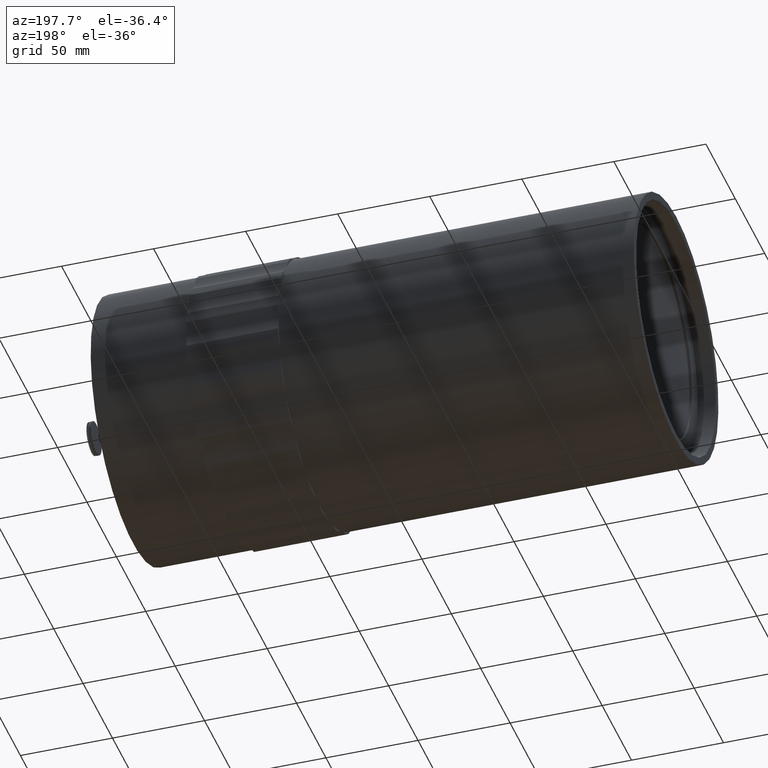
[diagram: clean part render]
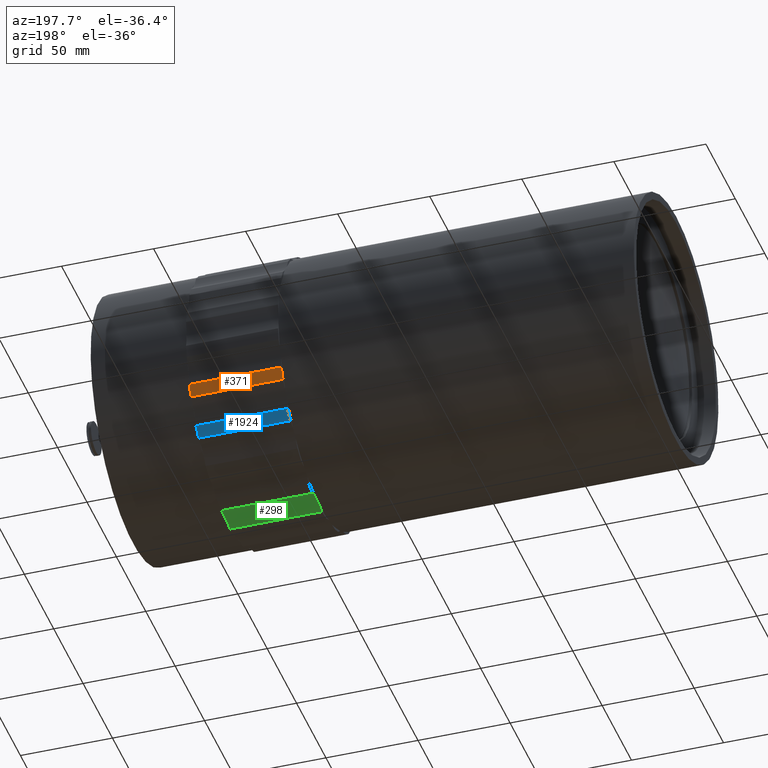
[diagram: same view with three faces highlighted in distinct colors, each labeled with its STEP entity id]
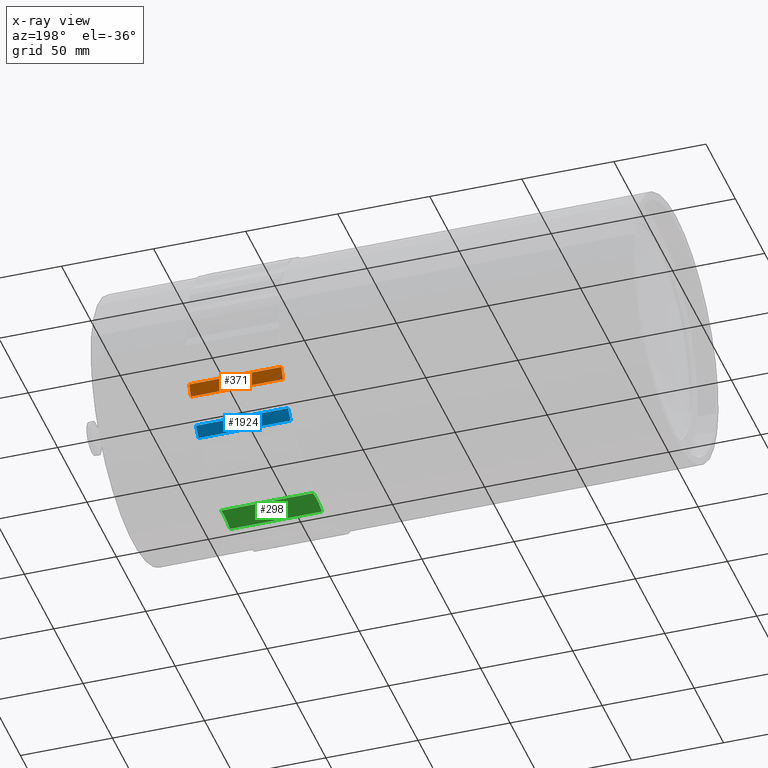
[diagram: x-ray of the same camera — body ghosted, the three highlighted faces saturated]
A machine part, auxiliary view with three faces highlighted in distinct colors.
The next image is the same camera in x-ray (body ghosted, the three faces saturated) — at least one of them is partly hidden behind the body in this view.
Their STEP definitions:

[orange] entity #371 — the highlighted cylindrical surface (partial cylindrical patch) has radius 73 mm, axis along (-1, -0, -0).
#142 = VERTEX_POINT ( 'NONE', #1271 ) ;
#159 = CARTESIAN_POINT ( 'NONE',  ( -61.14960380346137470, 0.000000000000000000, 0.000000000000000000 ) ) ;
#180 = CARTESIAN_POINT ( 'NONE',  ( 38.99999999999990763, 0.000000000000000000, 0.000000000000000000 ) ) ;
#189 = CYLINDRICAL_SURFACE ( 'NONE', #2617, 73.00000000000001421 ) ;
#288 = CARTESIAN_POINT ( 'NONE',  ( -11.00000000000009237, 0.000000000000000000, 0.000000000000000000 ) ) ;
#371 = ADVANCED_FACE ( 'NONE', ( #2129 ), #189, .T. ) ;
#469 = CARTESIAN_POINT ( 'NONE',  ( -11.00000000000009237, 64.28276904952367943, -34.59372202185826239 ) ) ;
#588 = DIRECTION ( 'NONE',  ( 0.000000000000000000, 0.000000000000000000, 1.000000000000000000 ) ) ;
#593 = CARTESIAN_POINT ( 'NONE',  ( -61.14960380346137470, 64.28276904952367943, -34.59372202185826239 ) ) ;
#704 = CARTESIAN_POINT ( 'NONE',  ( -11.00000000000009237, 67.12611191005457556, -28.68945973417468664 ) ) ;
#894 = EDGE_CURVE ( 'NONE', #1891, #962, #2159, .T. ) ;
#904 = AXIS2_PLACEMENT_3D ( 'NONE', #180, #1755, #588 ) ;
#944 = DIRECTION ( 'NONE',  ( 1.000000000000000000, 0.000000000000000000, 0.000000000000000000 ) ) ;
#962 = VERTEX_POINT ( 'NONE', #469 ) ;
#1065 = DIRECTION ( 'NONE',  ( -1.000000000000000000, -0.000000000000000000, -0.000000000000000000 ) ) ;
#1111 = DIRECTION ( 'NONE',  ( 0.000000000000000000, -9.769962616701377556E-15, 1.000000000000000000 ) ) ;
#1174 = ORIENTED_EDGE ( 'NONE', *, *, #1866, .T. ) ;
#1271 = CARTESIAN_POINT ( 'NONE',  ( 38.99999999999990763, 67.12611191005457556, -28.68945973417468664 ) ) ;
#1362 = CARTESIAN_POINT ( 'NONE',  ( 38.99999999999990763, 64.28276904952367943, -34.59372202185826239 ) ) ;
#1426 = VECTOR ( 'NONE', #2126, 1000.000000000000000 ) ;
#1582 = ORIENTED_EDGE ( 'NONE', *, *, #2830, .T. ) ;
#1755 = DIRECTION ( 'NONE',  ( -1.000000000000000000, -0.000000000000000000, -0.000000000000000000 ) ) ;
#1756 = LINE ( 'NONE', #2390, #2494 ) ;
#1826 = ORIENTED_EDGE ( 'NONE', *, *, #894, .T. ) ;
#1832 = EDGE_CURVE ( 'NONE', #1966, #142, #1756, .T. ) ;
#1866 = EDGE_CURVE ( 'NONE', #962, #1966, #2269, .T. ) ;
#1891 = VERTEX_POINT ( 'NONE', #1362 ) ;
#1893 = ORIENTED_EDGE ( 'NONE', *, *, #1832, .T. ) ;
#1906 = EDGE_LOOP ( 'NONE', ( #1174, #1893, #1582, #1826 ) ) ;
#1966 = VERTEX_POINT ( 'NONE', #704 ) ;
#2126 = DIRECTION ( 'NONE',  ( -1.000000000000000000, -0.000000000000000000, -0.000000000000000000 ) ) ;
#2129 = FACE_OUTER_BOUND ( 'NONE', #1906, .T. ) ;
#2159 = LINE ( 'NONE', #593, #1426 ) ;
#2269 = CIRCLE ( 'NONE', #2648, 73.00000000000001421 ) ;
#2390 = CARTESIAN_POINT ( 'NONE',  ( -61.14960380346137470, 67.12611191005457556, -28.68945973417467599 ) ) ;
#2494 = VECTOR ( 'NONE', #2637, 1000.000000000000000 ) ;
#2617 = AXIS2_PLACEMENT_3D ( 'NONE', #159, #1065, #2813 ) ;
#2637 = DIRECTION ( 'NONE',  ( 1.000000000000000000, 0.000000000000000000, 0.000000000000000000 ) ) ;
#2648 = AXIS2_PLACEMENT_3D ( 'NONE', #288, #944, #1111 ) ;
#2752 = CIRCLE ( 'NONE', #904, 73.00000000000001421 ) ;
#2813 = DIRECTION ( 'NONE',  ( 0.000000000000000000, 0.000000000000000000, 1.000000000000000000 ) ) ;
#2830 = EDGE_CURVE ( 'NONE', #142, #1891, #2752, .T. ) ;

[blue] entity #1924 — the highlighted cylindrical surface (partial cylindrical patch) has radius 73 mm, axis along (-1, -0, -0).
#53 = DIRECTION ( 'NONE',  ( -1.000000000000000000, -0.000000000000000000, -0.000000000000000000 ) ) ;
#88 = LINE ( 'NONE', #966, #360 ) ;
#107 = CARTESIAN_POINT ( 'NONE',  ( -11.00000000000009237, 55.68752039170402668, -47.20063635824785564 ) ) ;
#116 = EDGE_CURVE ( 'NONE', #2248, #596, #2634, .T. ) ;
#146 = AXIS2_PLACEMENT_3D ( 'NONE', #2696, #1137, #479 ) ;
#190 = ORIENTED_EDGE ( 'NONE', *, *, #277, .T. ) ;
#277 = EDGE_CURVE ( 'NONE', #596, #1049, #823, .T. ) ;
#330 = ORIENTED_EDGE ( 'NONE', *, *, #542, .T. ) ;
#359 = DIRECTION ( 'NONE',  ( 0.000000000000000000, 1.953992523340275511E-14, 1.000000000000000000 ) ) ;
#360 = VECTOR ( 'NONE', #2297, 1000.000000000000000 ) ;
#465 = VECTOR ( 'NONE', #2370, 1000.000000000000000 ) ;
#479 = DIRECTION ( 'NONE',  ( 0.000000000000000000, 0.000000000000000000, 1.000000000000000000 ) ) ;
#506 = AXIS2_PLACEMENT_3D ( 'NONE', #2339, #1221, #359 ) ;
#542 = EDGE_CURVE ( 'NONE', #1049, #1422, #1899, .T. ) ;
#596 = VERTEX_POINT ( 'NONE', #107 ) ;
#823 = LINE ( 'NONE', #1710, #465 ) ;
#906 = CARTESIAN_POINT ( 'NONE',  ( 38.99999999999990763, 0.000000000000000000, 0.000000000000000000 ) ) ;
#966 = CARTESIAN_POINT ( 'NONE',  ( -61.14960380346137470, 51.23018741628062145, -52.00449881782117245 ) ) ;
#1049 = VERTEX_POINT ( 'NONE', #2437 ) ;
#1122 = FACE_OUTER_BOUND ( 'NONE', #1536, .T. ) ;
#1137 = DIRECTION ( 'NONE',  ( -1.000000000000000000, -0.000000000000000000, -0.000000000000000000 ) ) ;
#1221 = DIRECTION ( 'NONE',  ( 1.000000000000000000, 0.000000000000000000, 0.000000000000000000 ) ) ;
#1422 = VERTEX_POINT ( 'NONE', #2172 ) ;
#1527 = ORIENTED_EDGE ( 'NONE', *, *, #116, .T. ) ;
#1533 = AXIS2_PLACEMENT_3D ( 'NONE', #906, #53, #2703 ) ;
#1536 = EDGE_LOOP ( 'NONE', ( #330, #1754, #1527, #190 ) ) ;
#1710 = CARTESIAN_POINT ( 'NONE',  ( 38.99999999999990763, 55.68752039170401957, -47.20063635824787696 ) ) ;
#1754 = ORIENTED_EDGE ( 'NONE', *, *, #2073, .T. ) ;
#1837 = CYLINDRICAL_SURFACE ( 'NONE', #146, 73.00000000000001421 ) ;
#1899 = CIRCLE ( 'NONE', #1533, 73.00000000000001421 ) ;
#1924 = ADVANCED_FACE ( 'NONE', ( #1122 ), #1837, .T. ) ;
#2073 = EDGE_CURVE ( 'NONE', #1422, #2248, #88, .T. ) ;
#2172 = CARTESIAN_POINT ( 'NONE',  ( 38.99999999999990763, 51.23018741628061434, -52.00449881782116535 ) ) ;
#2180 = CARTESIAN_POINT ( 'NONE',  ( -11.00000000000009237, 51.23018741628061434, -52.00449881782116535 ) ) ;
#2248 = VERTEX_POINT ( 'NONE', #2180 ) ;
#2297 = DIRECTION ( 'NONE',  ( -1.000000000000000000, -0.000000000000000000, -0.000000000000000000 ) ) ;
#2339 = CARTESIAN_POINT ( 'NONE',  ( -11.00000000000009237, 0.000000000000000000, 0.000000000000000000 ) ) ;
#2370 = DIRECTION ( 'NONE',  ( 1.000000000000000000, 0.000000000000000000, -0.000000000000000000 ) ) ;
#2437 = CARTESIAN_POINT ( 'NONE',  ( 38.99999999999990763, 55.68752039170401957, -47.20063635824786274 ) ) ;
#2634 = CIRCLE ( 'NONE', #506, 73.00000000000001421 ) ;
#2696 = CARTESIAN_POINT ( 'NONE',  ( -61.14960380346137470, 0.000000000000000000, 0.000000000000000000 ) ) ;
#2703 = DIRECTION ( 'NONE',  ( 0.000000000000000000, 0.000000000000000000, 1.000000000000000000 ) ) ;

[green] entity #298 — the highlighted cylindrical surface (partial cylindrical patch) has radius 27 mm, axis along (-1, -0, 0).
#23 = CARTESIAN_POINT ( 'NONE',  ( -11.00000000000009237, 13.03318996518171424, -71.82712551210363472 ) ) ;
#76 = DIRECTION ( 'NONE',  ( -1.000000000000000000, -0.000000000000000000, 0.000000000000000000 ) ) ;
#90 = CARTESIAN_POINT ( 'NONE',  ( -11.00000000000009237, 7.360914218262454511, -98.22457402234628887 ) ) ;
#102 = CARTESIAN_POINT ( 'NONE',  ( -61.14960380346137470, 13.03318996518171424, -71.82712551210363472 ) ) ;
#222 = VERTEX_POINT ( 'NONE', #1913 ) ;
#298 = ADVANCED_FACE ( 'NONE', ( #1553 ), #431, .F. ) ;
#335 = DIRECTION ( 'NONE',  ( -1.000000000000000000, -0.000000000000000000, 0.000000000000000000 ) ) ;
#402 = ORIENTED_EDGE ( 'NONE', *, *, #2684, .T. ) ;
#431 = CYLINDRICAL_SURFACE ( 'NONE', #1438, 27.00000000000001066 ) ;
#545 = DIRECTION ( 'NONE',  ( 1.000000000000000000, 0.000000000000000000, -0.000000000000000000 ) ) ;
#553 = LINE ( 'NONE', #102, #1232 ) ;
#623 = CARTESIAN_POINT ( 'NONE',  ( -11.00000000000009237, -2.182342442375725611, -72.96737203342468092 ) ) ;
#963 = VERTEX_POINT ( 'NONE', #2424 ) ;
#1178 = DIRECTION ( 'NONE',  ( -1.000000000000000000, -0.000000000000000000, -0.000000000000000000 ) ) ;
#1182 = CIRCLE ( 'NONE', #2393, 27.00000000000001066 ) ;
#1188 = EDGE_CURVE ( 'NONE', #1333, #963, #2489, .T. ) ;
#1232 = VECTOR ( 'NONE', #1178, 1000.000000000000000 ) ;
#1262 = CIRCLE ( 'NONE', #1367, 27.00000000000001066 ) ;
#1333 = VERTEX_POINT ( 'NONE', #623 ) ;
#1349 = ORIENTED_EDGE ( 'NONE', *, *, #2047, .F. ) ;
#1367 = AXIS2_PLACEMENT_3D ( 'NONE', #90, #76, #2109 ) ;
#1438 = AXIS2_PLACEMENT_3D ( 'NONE', #1921, #2192, #1748 ) ;
#1488 = VECTOR ( 'NONE', #545, 1000.000000000000000 ) ;
#1553 = FACE_OUTER_BOUND ( 'NONE', #2350, .T. ) ;
#1748 = DIRECTION ( 'NONE',  ( 0.000000000000000000, 0.000000000000000000, 1.000000000000000000 ) ) ;
#1830 = CARTESIAN_POINT ( 'NONE',  ( 38.99999999999990763, -2.182342442375742042, -72.96737203342469513 ) ) ;
#1865 = DIRECTION ( 'NONE',  ( 0.000000000000000000, 0.000000000000000000, 1.000000000000000000 ) ) ;
#1913 = CARTESIAN_POINT ( 'NONE',  ( 38.99999999999990763, 13.03318996518171424, -71.82712551210363472 ) ) ;
#1921 = CARTESIAN_POINT ( 'NONE',  ( 38.99999999999990763, 7.360914218262454511, -98.22457402234628887 ) ) ;
#2047 = EDGE_CURVE ( 'NONE', #222, #2453, #553, .T. ) ;
#2088 = EDGE_CURVE ( 'NONE', #963, #222, #1182, .T. ) ;
#2109 = DIRECTION ( 'NONE',  ( 0.000000000000000000, 0.000000000000000000, 1.000000000000000000 ) ) ;
#2192 = DIRECTION ( 'NONE',  ( -1.000000000000000000, -0.000000000000000000, 0.000000000000000000 ) ) ;
#2313 = CARTESIAN_POINT ( 'NONE',  ( 38.99999999999990763, 7.360914218262454511, -98.22457402234628887 ) ) ;
#2350 = EDGE_LOOP ( 'NONE', ( #1349, #2780, #2733, #402 ) ) ;
#2393 = AXIS2_PLACEMENT_3D ( 'NONE', #2313, #335, #1865 ) ;
#2424 = CARTESIAN_POINT ( 'NONE',  ( 38.99999999999990763, -2.182342442375746039, -72.96737203342468092 ) ) ;
#2453 = VERTEX_POINT ( 'NONE', #23 ) ;
#2489 = LINE ( 'NONE', #1830, #1488 ) ;
#2684 = EDGE_CURVE ( 'NONE', #1333, #2453, #1262, .T. ) ;
#2733 = ORIENTED_EDGE ( 'NONE', *, *, #1188, .F. ) ;
#2780 = ORIENTED_EDGE ( 'NONE', *, *, #2088, .F. ) ;